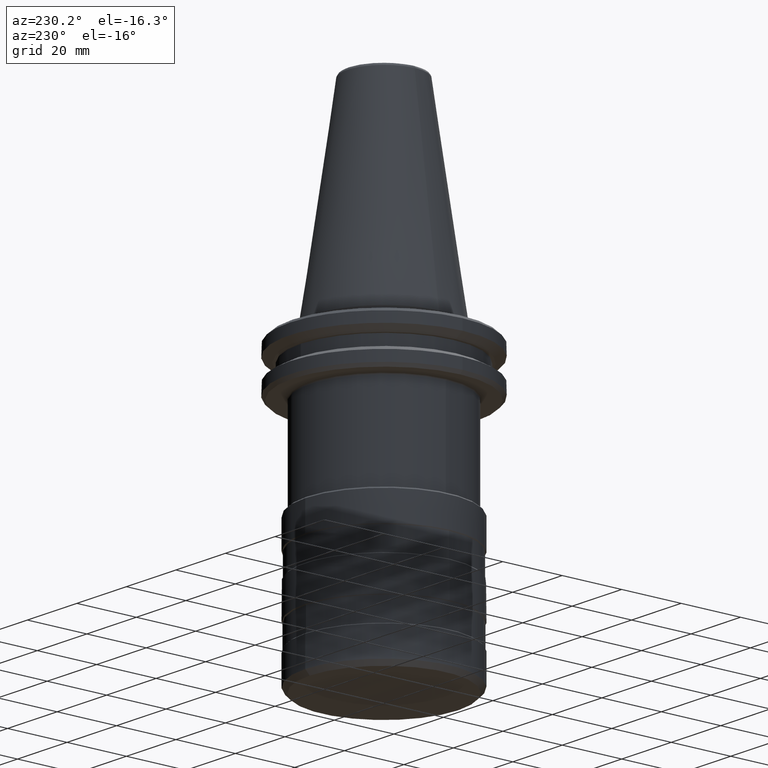
[diagram: clean part render]
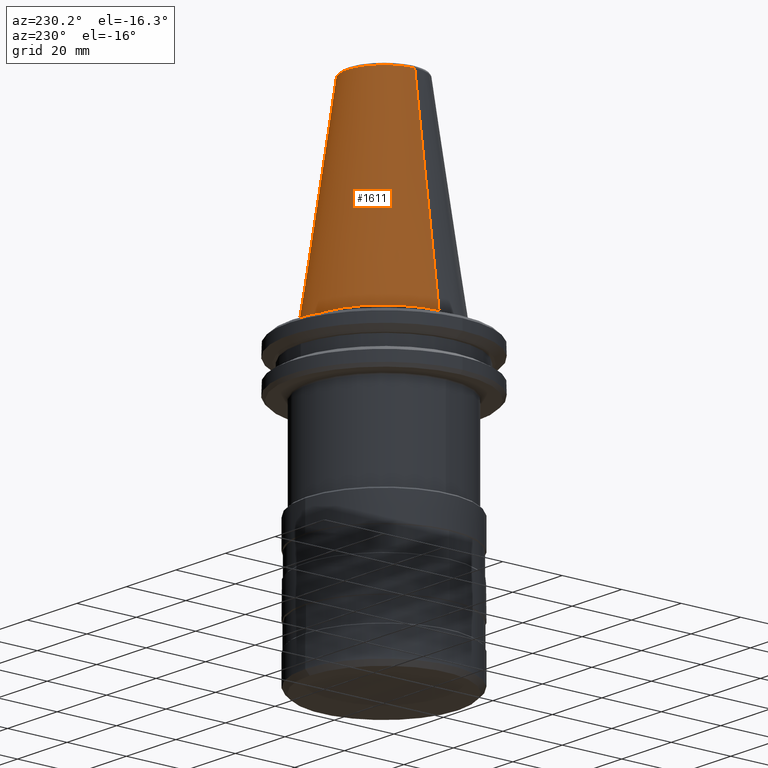
[diagram: same view with one face highlighted and labeled with its STEP entity id]
A machine part, auxiliary view. The second image highlights one B-rep face of the part: STEP entity #1611.
In plain terms, the highlighted conical surface has half-angle 8.297 deg.
Its self-contained STEP definition (entity closure, byte-faithful):
#157 = VERTEX_POINT ( 'NONE', #906 ) ;
#205 = DIRECTION ( 'NONE',  ( 0.0000000000000000000, 0.0000000000000000000, -1.000000000000000000 ) ) ;
#226 = DIRECTION ( 'NONE',  ( 0.1443082272694599400, 1.767266086161729200E-017, -0.9895327864918603800 ) ) ;
#321 = ORIENTED_EDGE ( 'NONE', *, *, #1055, .T. ) ;
#340 = CONICAL_SURFACE ( 'NONE', #1785, 22.22499999999999400, 0.1448138465495947800 ) ;
#380 = ORIENTED_EDGE ( 'NONE', *, *, #971, .T. ) ;
#391 = CARTESIAN_POINT ( 'NONE',  ( 22.22499999999999400, 2.721777511104992100E-015, 0.0000000000000000000 ) ) ;
#407 = AXIS2_PLACEMENT_3D ( 'NONE', #1117, #205, #1245 ) ;
#434 = LINE ( 'NONE', #1650, #1170 ) ;
#515 = DIRECTION ( 'NONE',  ( -0.0000000000000000000, -0.0000000000000000000, 1.000000000000000000 ) ) ;
#557 = AXIS2_PLACEMENT_3D ( 'NONE', #1371, #515, #1500 ) ;
#678 = VECTOR ( 'NONE', #1615, 1000.000000000000100 ) ;
#686 = DIRECTION ( 'NONE',  ( -1.000000000000000000, 0.0000000000000000000, 0.0000000000000000000 ) ) ;
#762 = ORIENTED_EDGE ( 'NONE', *, *, #872, .F. ) ;
#790 = FACE_OUTER_BOUND ( 'NONE', #1047, .T. ) ;
#872 = EDGE_CURVE ( 'NONE', #1453, #937, #1064, .T. ) ;
#883 = CIRCLE ( 'NONE', #407, 12.37469537600000400 ) ;
#906 = CARTESIAN_POINT ( 'NONE',  ( 12.37469537590452100, -2.855354478374084000E-009, 67.54430822699950500 ) ) ;
#933 = EDGE_CURVE ( 'NONE', #1673, #937, #1339, .T. ) ;
#937 = VERTEX_POINT ( 'NONE', #1235 ) ;
#971 = EDGE_CURVE ( 'NONE', #1453, #157, #883, .T. ) ;
#1047 = EDGE_LOOP ( 'NONE', ( #380, #321, #1327, #762 ) ) ;
#1055 = EDGE_CURVE ( 'NONE', #157, #1673, #434, .T. ) ;
#1064 = LINE ( 'NONE', #1343, #678 ) ;
#1117 = CARTESIAN_POINT ( 'NONE',  ( 0.0000000000000000000, 0.0000000000000000000, 67.54430822699998800 ) ) ;
#1170 = VECTOR ( 'NONE', #226, 1000.000000000000100 ) ;
#1235 = CARTESIAN_POINT ( 'NONE',  ( -22.22499999999999400, 0.0000000000000000000, 0.0000000000000000000 ) ) ;
#1245 = DIRECTION ( 'NONE',  ( -1.000000000000000000, 0.0000000000000000000, 0.0000000000000000000 ) ) ;
#1327 = ORIENTED_EDGE ( 'NONE', *, *, #933, .T. ) ;
#1339 = CIRCLE ( 'NONE', #557, 22.22499999999999400 ) ;
#1343 = CARTESIAN_POINT ( 'NONE',  ( -22.22499999999999400, 0.0000000000000000000, 0.0000000000000000000 ) ) ;
#1371 = CARTESIAN_POINT ( 'NONE',  ( 0.0000000000000000000, 0.0000000000000000000, 0.0000000000000000000 ) ) ;
#1453 = VERTEX_POINT ( 'NONE', #1594 ) ;
#1500 = DIRECTION ( 'NONE',  ( -1.000000000000000000, 0.0000000000000000000, 0.0000000000000000000 ) ) ;
#1594 = CARTESIAN_POINT ( 'NONE',  ( -12.37469537590595300, -5.555843992514513000E-010, 67.54430822698967100 ) ) ;
#1611 = ADVANCED_FACE ( 'NONE', ( #790 ), #340, .T. ) ;
#1615 = DIRECTION ( 'NONE',  ( -0.1443082272694599400, 0.0000000000000000000, -0.9895327864918603800 ) ) ;
#1650 = CARTESIAN_POINT ( 'NONE',  ( 22.22499999999999400, 2.721777511104992100E-015, 0.0000000000000000000 ) ) ;
#1653 = CARTESIAN_POINT ( 'NONE',  ( 0.0000000000000000000, 0.0000000000000000000, 0.0000000000000000000 ) ) ;
#1673 = VERTEX_POINT ( 'NONE', #391 ) ;
#1781 = DIRECTION ( 'NONE',  ( 0.0000000000000000000, 0.0000000000000000000, -1.000000000000000000 ) ) ;
#1785 = AXIS2_PLACEMENT_3D ( 'NONE', #1653, #1781, #686 ) ;